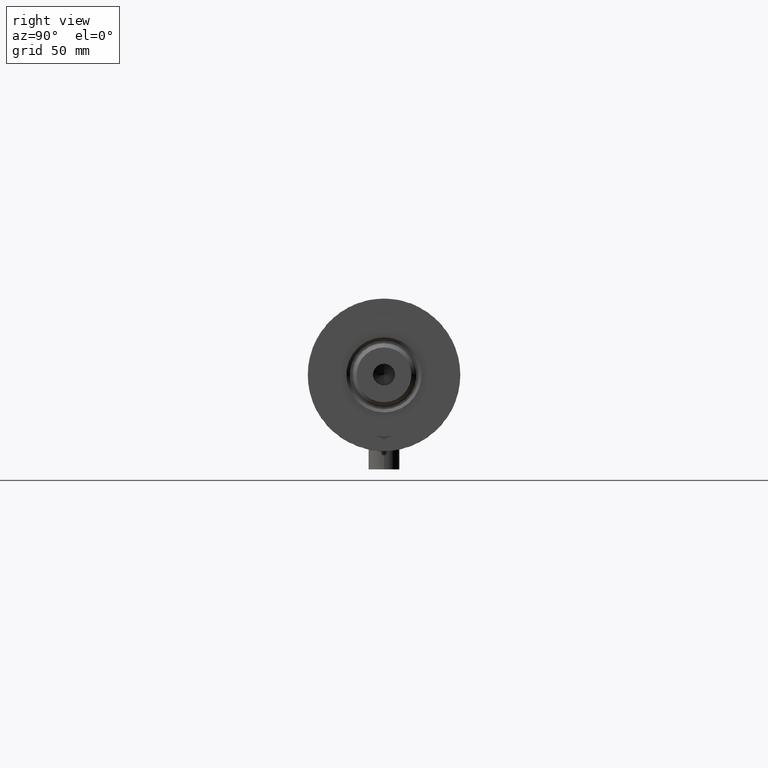
[diagram: clean part render]
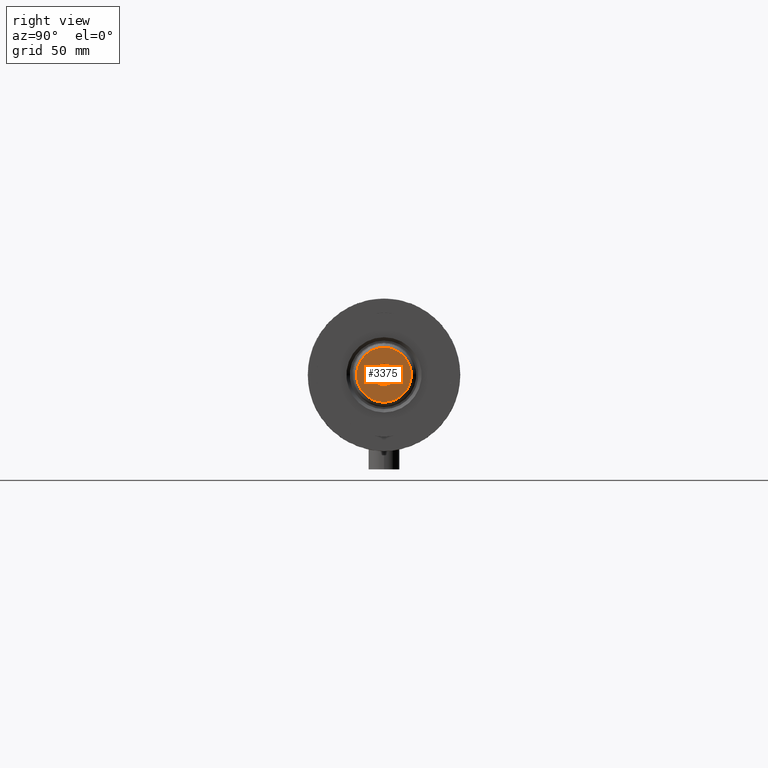
[diagram: same view with one face highlighted and labeled with its STEP entity id]
A machine part, right view. The second image highlights one B-rep face of the part: STEP entity #3375.
In plain terms, the highlighted planar face has unit normal (1, 0, -0).
Its self-contained STEP definition (entity closure, byte-faithful):
#108 = CARTESIAN_POINT ( 'NONE',  ( 10.59999999999997122, 1.383850883036507292E-15, 230.3000000000000114 ) ) ;
#226 = CIRCLE ( 'NONE', #4482, 4.249999999999997335 ) ;
#297 = VERTEX_POINT ( 'NONE', #108 ) ;
#373 = DIRECTION ( 'NONE',  ( 0.000000000000000000, 0.000000000000000000, 1.000000000000000000 ) ) ;
#435 = PLANE ( 'NONE',  #909 ) ;
#457 = FACE_OUTER_BOUND ( 'NONE', #2661, .T. ) ;
#499 = VERTEX_POINT ( 'NONE', #3510 ) ;
#542 = CIRCLE ( 'NONE', #1153, 4.249999999999997335 ) ;
#739 = DIRECTION ( 'NONE',  ( 0.000000000000000000, 0.000000000000000000, 1.000000000000000000 ) ) ;
#909 = AXIS2_PLACEMENT_3D ( 'NONE', #3014, #739, #3058 ) ;
#982 = AXIS2_PLACEMENT_3D ( 'NONE', #2646, #2731, #4554 ) ;
#1041 = DIRECTION ( 'NONE',  ( -0.000000000000000000, -0.000000000000000000, 1.000000000000000000 ) ) ;
#1048 = DIRECTION ( 'NONE',  ( 1.000000000000000000, 0.000000000000000000, 0.000000000000000000 ) ) ;
#1153 = AXIS2_PLACEMENT_3D ( 'NONE', #4388, #1041, #1790 ) ;
#1189 = EDGE_CURVE ( 'NONE', #499, #297, #2459, .T. ) ;
#1660 = VERTEX_POINT ( 'NONE', #2467 ) ;
#1691 = VERTEX_POINT ( 'NONE', #2539 ) ;
#1790 = DIRECTION ( 'NONE',  ( 1.000000000000000000, 0.000000000000000000, 0.000000000000000000 ) ) ;
#1884 = ORIENTED_EDGE ( 'NONE', *, *, #3658, .F. ) ;
#1886 = DIRECTION ( 'NONE',  ( 1.000000000000000000, 0.000000000000000000, 0.000000000000000000 ) ) ;
#1924 = FACE_BOUND ( 'NONE', #3572, .T. ) ;
#2189 = CARTESIAN_POINT ( 'NONE',  ( 0.000000000000000000, 0.000000000000000000, 230.3000000000000114 ) ) ;
#2256 = CARTESIAN_POINT ( 'NONE',  ( 0.000000000000000000, 0.000000000000000000, 230.3000000000000114 ) ) ;
#2459 = CIRCLE ( 'NONE', #982, 10.59999999999997122 ) ;
#2467 = CARTESIAN_POINT ( 'NONE',  ( -4.249999999999997335, 5.204748896376248727E-16, 230.3000000000000114 ) ) ;
#2539 = CARTESIAN_POINT ( 'NONE',  ( 4.249999999999997335, 0.000000000000000000, 230.3000000000000114 ) ) ;
#2646 = CARTESIAN_POINT ( 'NONE',  ( 0.000000000000000000, 0.000000000000000000, 230.3000000000000114 ) ) ;
#2661 = EDGE_LOOP ( 'NONE', ( #3360, #3156 ) ) ;
#2731 = DIRECTION ( 'NONE',  ( 0.000000000000000000, 0.000000000000000000, 1.000000000000000000 ) ) ;
#2795 = EDGE_CURVE ( 'NONE', #297, #499, #3697, .T. ) ;
#3014 = CARTESIAN_POINT ( 'NONE',  ( 0.000000000000000000, 0.000000000000000000, 230.3000000000000114 ) ) ;
#3058 = DIRECTION ( 'NONE',  ( 1.000000000000000000, 0.000000000000000000, -0.000000000000000000 ) ) ;
#3156 = ORIENTED_EDGE ( 'NONE', *, *, #2795, .T. ) ;
#3257 = DIRECTION ( 'NONE',  ( -0.000000000000000000, -0.000000000000000000, 1.000000000000000000 ) ) ;
#3360 = ORIENTED_EDGE ( 'NONE', *, *, #1189, .T. ) ;
#3375 = ADVANCED_FACE ( 'NONE', ( #457, #1924 ), #435, .T. ) ;
#3510 = CARTESIAN_POINT ( 'NONE',  ( -10.59999999999997122, 0.000000000000000000, 230.3000000000000114 ) ) ;
#3572 = EDGE_LOOP ( 'NONE', ( #1884, #4298 ) ) ;
#3658 = EDGE_CURVE ( 'NONE', #1691, #1660, #226, .T. ) ;
#3697 = CIRCLE ( 'NONE', #4162, 10.59999999999997122 ) ;
#4162 = AXIS2_PLACEMENT_3D ( 'NONE', #2256, #373, #1886 ) ;
#4298 = ORIENTED_EDGE ( 'NONE', *, *, #4454, .F. ) ;
#4388 = CARTESIAN_POINT ( 'NONE',  ( 0.000000000000000000, 0.000000000000000000, 230.3000000000000114 ) ) ;
#4454 = EDGE_CURVE ( 'NONE', #1660, #1691, #542, .T. ) ;
#4482 = AXIS2_PLACEMENT_3D ( 'NONE', #2189, #3257, #1048 ) ;
#4554 = DIRECTION ( 'NONE',  ( 1.000000000000000000, 0.000000000000000000, 0.000000000000000000 ) ) ;